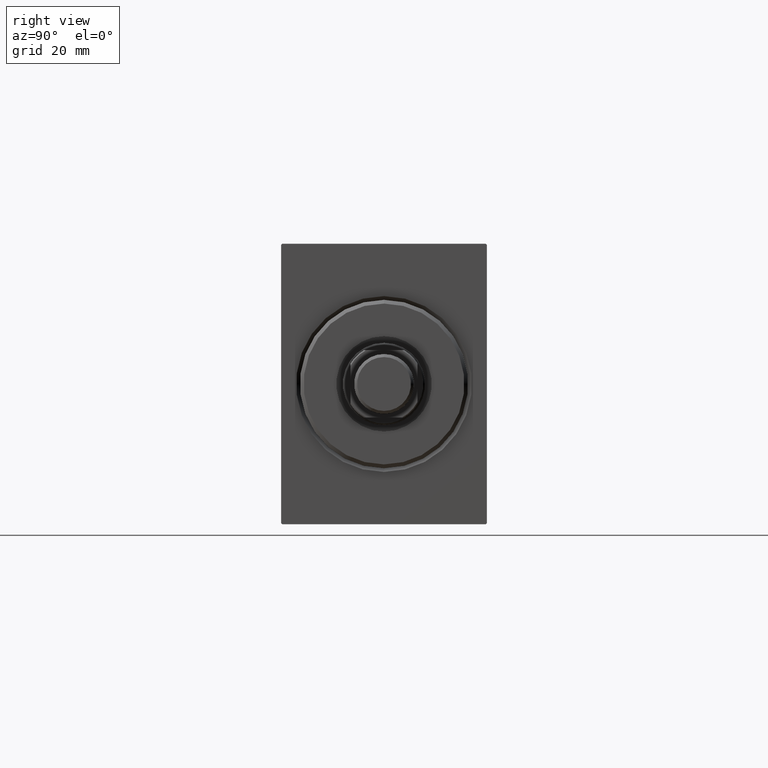
[diagram: clean part render]
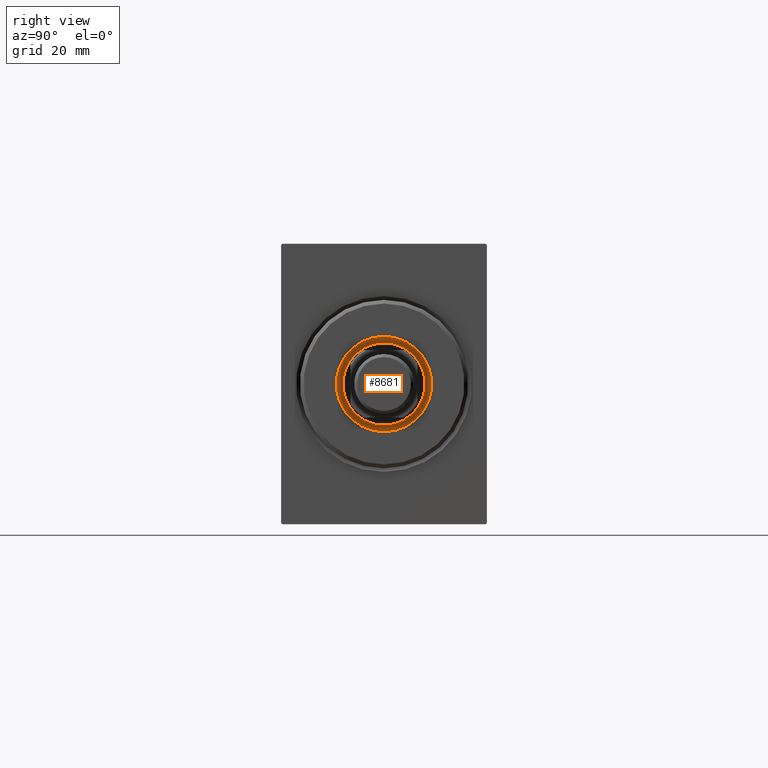
[diagram: same view with one face highlighted and labeled with its STEP entity id]
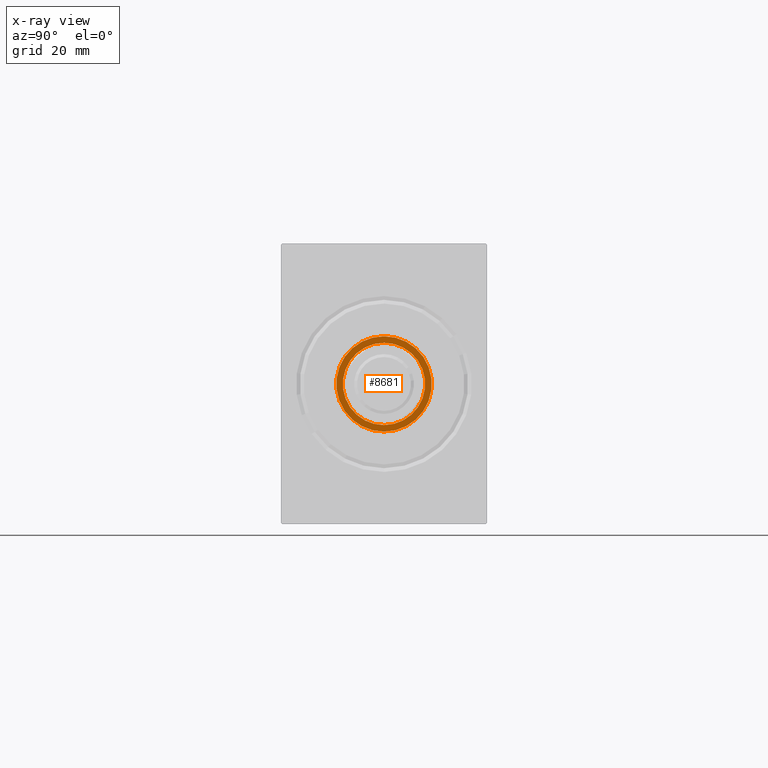
[diagram: x-ray of the same camera — body ghosted, the highlighted face saturated]
A machine part, right view. The second image highlights one B-rep face of the part: STEP entity #8681.
The next image is the same camera in x-ray: the body ghosted, the highlighted face saturated — about 0% of this face is hidden behind the body in this view.
In plain terms, the highlighted planar face has unit normal (1, 0, 0).
Its self-contained STEP definition (entity closure, byte-faithful):
#283 = ORIENTED_EDGE ( 'NONE', *, *, #18080, .T. ) ;
#2657 = CIRCLE ( 'NONE', #11035, 11.00000000000000000 ) ;
#3484 = DIRECTION ( 'NONE',  ( 0.000000000000000000, 0.000000000000000000, -1.000000000000000000 ) ) ;
#4080 = DIRECTION ( 'NONE',  ( 1.000000000000000000, 0.000000000000000000, 0.000000000000000000 ) ) ;
#4351 = FACE_BOUND ( 'NONE', #14248, .T. ) ;
#4776 = VERTEX_POINT ( 'NONE', #39621 ) ;
#6517 = ORIENTED_EDGE ( 'NONE', *, *, #22579, .F. ) ;
#6534 = CARTESIAN_POINT ( 'NONE',  ( 1.500000000000000000, 0.000000000000000000, 0.000000000000000000 ) ) ;
#7086 = CIRCLE ( 'NONE', #9177, 11.00000000000000000 ) ;
#7643 = FACE_OUTER_BOUND ( 'NONE', #28575, .T. ) ;
#7874 = CARTESIAN_POINT ( 'NONE',  ( 1.500000000000001332, 0.000000000000000000, -11.00000000000000000 ) ) ;
#8681 = ADVANCED_FACE ( 'NONE', ( #4351, #7643 ), #21210, .T. ) ;
#9177 = AXIS2_PLACEMENT_3D ( 'NONE', #37277, #20647, #33971 ) ;
#10037 = CARTESIAN_POINT ( 'NONE',  ( 1.500000000000001332, 1.347111479062088207E-15, 11.00000000000000000 ) ) ;
#10482 = DIRECTION ( 'NONE',  ( 0.000000000000000000, 0.000000000000000000, -1.000000000000000000 ) ) ;
#11035 = AXIS2_PLACEMENT_3D ( 'NONE', #20074, #4080, #27717 ) ;
#13494 = DIRECTION ( 'NONE',  ( 0.000000000000000000, 0.000000000000000000, -1.000000000000000000 ) ) ;
#13686 = CIRCLE ( 'NONE', #23495, 12.75000000000000000 ) ;
#14248 = EDGE_LOOP ( 'NONE', ( #6517, #17055 ) ) ;
#15597 = EDGE_CURVE ( 'NONE', #4776, #27713, #43085, .T. ) ;
#16993 = CARTESIAN_POINT ( 'NONE',  ( 1.500000000000000000, 0.000000000000000000, 0.000000000000000000 ) ) ;
#17055 = ORIENTED_EDGE ( 'NONE', *, *, #37677, .F. ) ;
#17487 = DIRECTION ( 'NONE',  ( 1.000000000000000000, 0.000000000000000000, 0.000000000000000000 ) ) ;
#18080 = EDGE_CURVE ( 'NONE', #27713, #4776, #13686, .T. ) ;
#19240 = CARTESIAN_POINT ( 'NONE',  ( 1.500000000000000000, 1.561424668912874914E-15, -12.75000000000000000 ) ) ;
#20074 = CARTESIAN_POINT ( 'NONE',  ( 1.500000000000001332, 0.000000000000000000, 0.000000000000000000 ) ) ;
#20647 = DIRECTION ( 'NONE',  ( 1.000000000000000000, 0.000000000000000000, 0.000000000000000000 ) ) ;
#21210 = PLANE ( 'NONE',  #26158 ) ;
#21713 = ORIENTED_EDGE ( 'NONE', *, *, #15597, .T. ) ;
#22579 = EDGE_CURVE ( 'NONE', #29960, #39922, #2657, .T. ) ;
#23348 = DIRECTION ( 'NONE',  ( 1.000000000000000000, 0.000000000000000000, 0.000000000000000000 ) ) ;
#23495 = AXIS2_PLACEMENT_3D ( 'NONE', #6534, #24057, #3484 ) ;
#24057 = DIRECTION ( 'NONE',  ( 1.000000000000000000, 0.000000000000000000, 0.000000000000000000 ) ) ;
#24235 = AXIS2_PLACEMENT_3D ( 'NONE', #16993, #23348, #13494 ) ;
#26158 = AXIS2_PLACEMENT_3D ( 'NONE', #37406, #17487, #10482 ) ;
#27713 = VERTEX_POINT ( 'NONE', #19240 ) ;
#27717 = DIRECTION ( 'NONE',  ( 0.000000000000000000, 0.000000000000000000, -1.000000000000000000 ) ) ;
#28575 = EDGE_LOOP ( 'NONE', ( #21713, #283 ) ) ;
#29960 = VERTEX_POINT ( 'NONE', #7874 ) ;
#33971 = DIRECTION ( 'NONE',  ( 0.000000000000000000, 0.000000000000000000, -1.000000000000000000 ) ) ;
#37277 = CARTESIAN_POINT ( 'NONE',  ( 1.500000000000001332, 0.000000000000000000, 0.000000000000000000 ) ) ;
#37406 = CARTESIAN_POINT ( 'NONE',  ( 1.500000000000000000, 0.000000000000000000, 0.000000000000000000 ) ) ;
#37677 = EDGE_CURVE ( 'NONE', #39922, #29960, #7086, .T. ) ;
#39621 = CARTESIAN_POINT ( 'NONE',  ( 1.500000000000000000, 0.000000000000000000, 12.75000000000000000 ) ) ;
#39922 = VERTEX_POINT ( 'NONE', #10037 ) ;
#43085 = CIRCLE ( 'NONE', #24235, 12.75000000000000000 ) ;